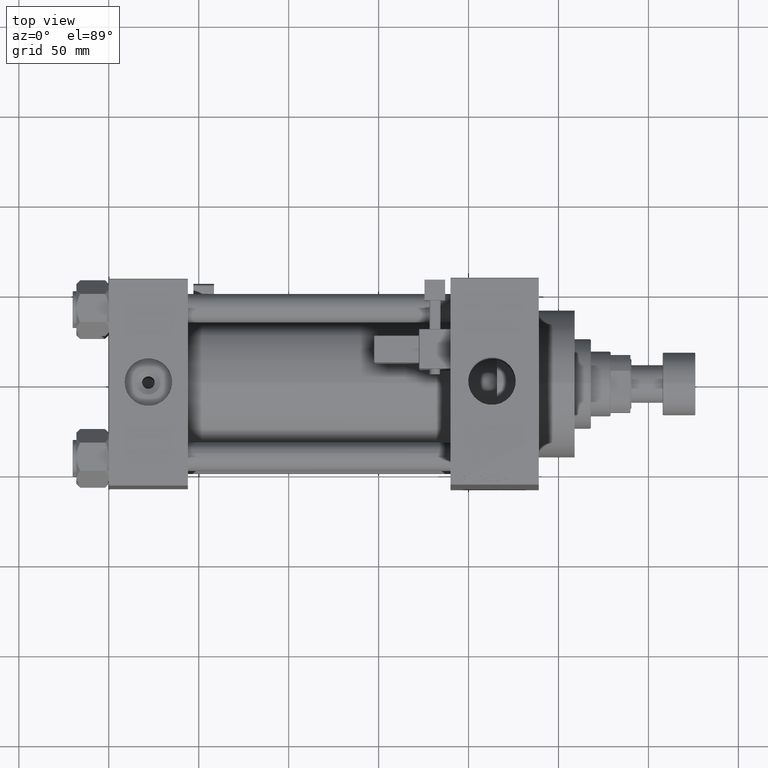
[diagram: clean part render]
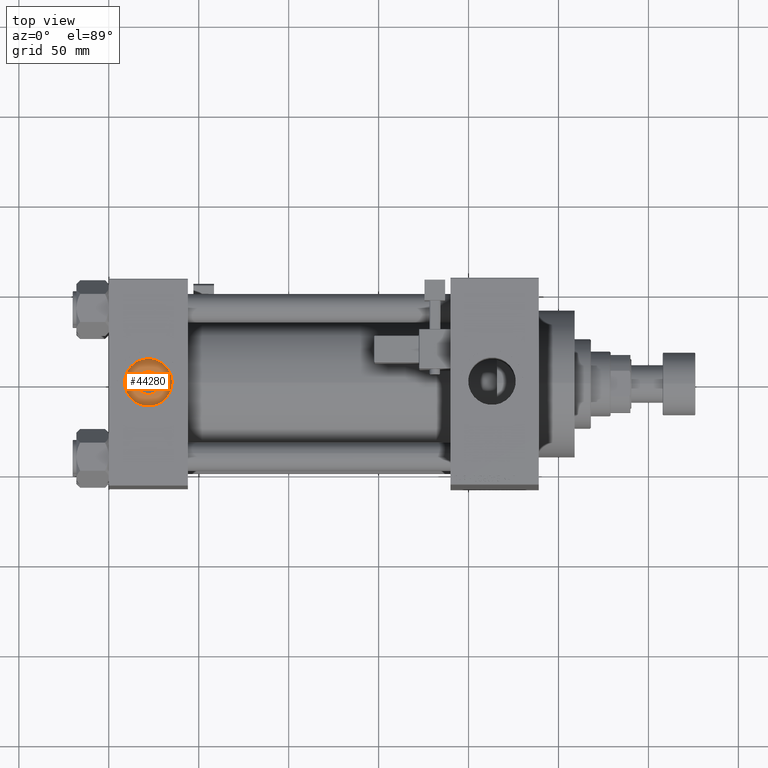
[diagram: same view with one face highlighted and labeled with its STEP entity id]
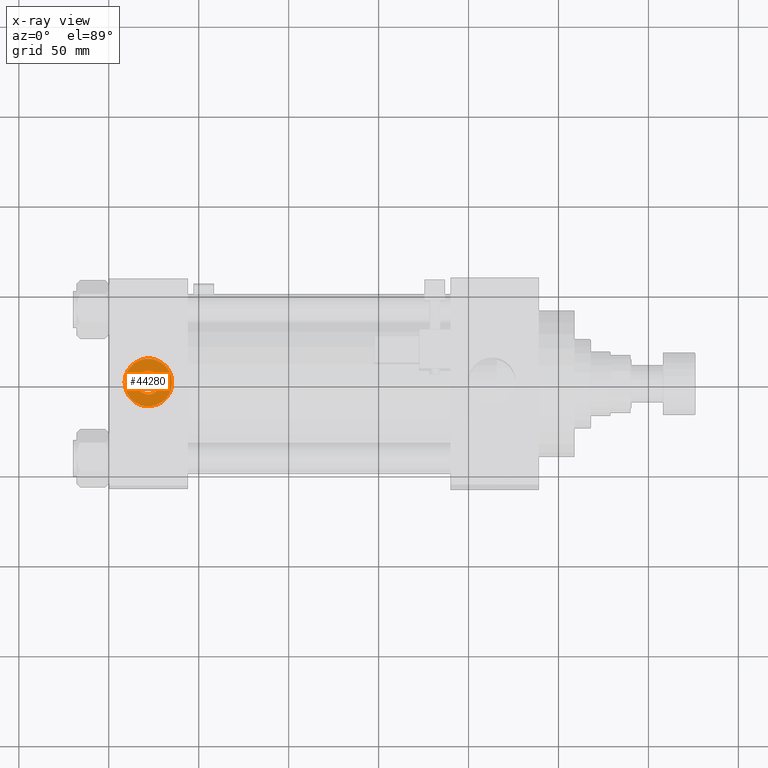
[diagram: x-ray of the same camera — body ghosted, the highlighted face saturated]
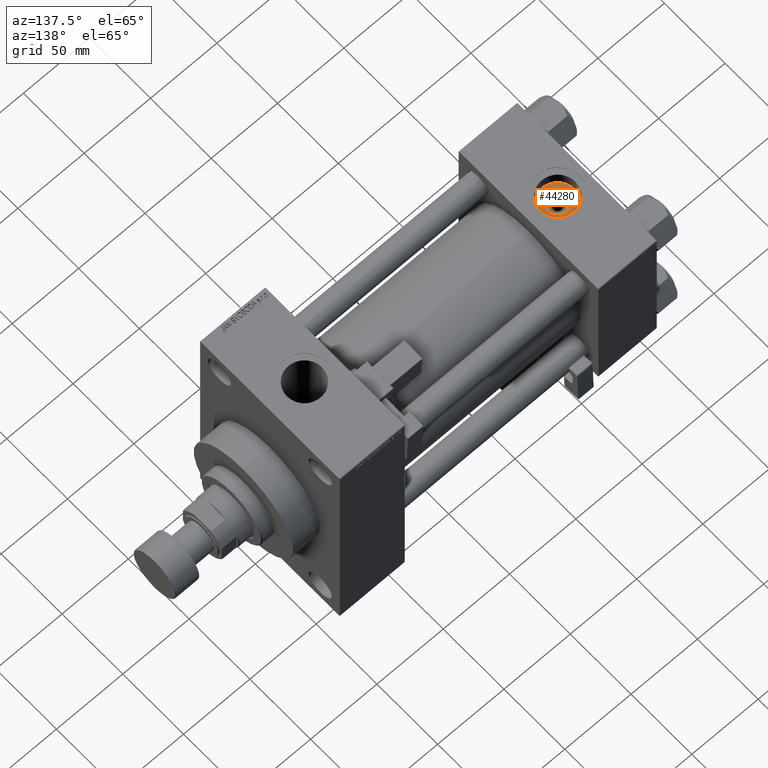
[diagram: same view with one face highlighted and labeled with its STEP entity id]
A machine part, top view. The second image highlights one B-rep face of the part: STEP entity #44280.
The next image is the same camera in x-ray: the body ghosted, the highlighted face saturated — about 0% of this face is hidden behind the body in this view.
A second angle (auxiliary view) of the same face is appended — the face is thin or edge-on in the first view.
In plain terms, the highlighted planar face has unit normal (0, 0, 1).
Its self-contained STEP definition (entity closure, byte-faithful):
#1987 = CIRCLE ( 'NONE', #10092, 6.640000000000090274 ) ;
#3441 = EDGE_CURVE ( 'NONE', #27596, #50212, #39282, .T. ) ;
#3694 = DIRECTION ( 'NONE',  ( 0.000000000000000000, 0.000000000000000000, 1.000000000000000000 ) ) ;
#8852 = EDGE_CURVE ( 'NONE', #12569, #23355, #1987, .T. ) ;
#10092 = AXIS2_PLACEMENT_3D ( 'NONE', #11655, #43215, #31742 ) ;
#11655 = CARTESIAN_POINT ( 'NONE',  ( 22.00000000000000000, -8.673617379884035472E-15, 46.70000000000000284 ) ) ;
#12569 = VERTEX_POINT ( 'NONE', #46102 ) ;
#15194 = CARTESIAN_POINT ( 'NONE',  ( 8.779999999999994031, -7.054634311411234321E-15, 46.70000000000000284 ) ) ;
#15745 = DIRECTION ( 'NONE',  ( 0.000000000000000000, 0.000000000000000000, 1.000000000000000000 ) ) ;
#17225 = CARTESIAN_POINT ( 'NONE',  ( 15.35999999999990884, -7.860451905250181530E-15, 46.70000000000000284 ) ) ;
#17912 = AXIS2_PLACEMENT_3D ( 'NONE', #38572, #3694, #19971 ) ;
#18974 = FACE_OUTER_BOUND ( 'NONE', #36184, .T. ) ;
#19672 = CIRCLE ( 'NONE', #37534, 13.22000000000000242 ) ;
#19813 = CARTESIAN_POINT ( 'NONE',  ( 35.21999999999999886, -8.673617379884035472E-15, 46.70000000000000284 ) ) ;
#19878 = EDGE_CURVE ( 'NONE', #23355, #12569, #45343, .T. ) ;
#19971 = DIRECTION ( 'NONE',  ( 1.000000000000000000, 0.000000000000000000, -0.000000000000000000 ) ) ;
#23320 = ORIENTED_EDGE ( 'NONE', *, *, #8852, .T. ) ;
#23355 = VERTEX_POINT ( 'NONE', #17225 ) ;
#23796 = FACE_BOUND ( 'NONE', #26776, .T. ) ;
#26285 = AXIS2_PLACEMENT_3D ( 'NONE', #42989, #15745, #35844 ) ;
#26776 = EDGE_LOOP ( 'NONE', ( #23320, #27887 ) ) ;
#27177 = CARTESIAN_POINT ( 'NONE',  ( 22.00000000000000000, -8.673617379884035472E-15, 46.70000000000000284 ) ) ;
#27298 = DIRECTION ( 'NONE',  ( 1.000000000000000000, 0.000000000000000000, 0.000000000000000000 ) ) ;
#27596 = VERTEX_POINT ( 'NONE', #15194 ) ;
#27887 = ORIENTED_EDGE ( 'NONE', *, *, #19878, .T. ) ;
#31229 = DIRECTION ( 'NONE',  ( -0.000000000000000000, -0.000000000000000000, -1.000000000000000000 ) ) ;
#31742 = DIRECTION ( 'NONE',  ( 1.000000000000000000, 0.000000000000000000, 0.000000000000000000 ) ) ;
#33765 = ORIENTED_EDGE ( 'NONE', *, *, #47011, .T. ) ;
#34775 = AXIS2_PLACEMENT_3D ( 'NONE', #27177, #31229, #50080 ) ;
#35501 = ORIENTED_EDGE ( 'NONE', *, *, #3441, .T. ) ;
#35844 = DIRECTION ( 'NONE',  ( 1.000000000000000000, 0.000000000000000000, 0.000000000000000000 ) ) ;
#36184 = EDGE_LOOP ( 'NONE', ( #33765, #35501 ) ) ;
#37534 = AXIS2_PLACEMENT_3D ( 'NONE', #43074, #47376, #27298 ) ;
#38572 = CARTESIAN_POINT ( 'NONE',  ( 22.00000000000000000, -8.673617379884035472E-15, 46.70000000000000284 ) ) ;
#39282 = CIRCLE ( 'NONE', #26285, 13.22000000000000242 ) ;
#42989 = CARTESIAN_POINT ( 'NONE',  ( 22.00000000000000000, -8.673617379884035472E-15, 46.70000000000000284 ) ) ;
#43074 = CARTESIAN_POINT ( 'NONE',  ( 22.00000000000000000, -8.673617379884035472E-15, 46.70000000000000284 ) ) ;
#43215 = DIRECTION ( 'NONE',  ( -0.000000000000000000, -0.000000000000000000, -1.000000000000000000 ) ) ;
#44280 = ADVANCED_FACE ( 'NONE', ( #23796, #18974 ), #46721, .T. ) ;
#45343 = CIRCLE ( 'NONE', #34775, 6.640000000000090274 ) ;
#46102 = CARTESIAN_POINT ( 'NONE',  ( 28.64000000000008939, -8.673617379884035472E-15, 46.70000000000000284 ) ) ;
#46721 = PLANE ( 'NONE',  #17912 ) ;
#47011 = EDGE_CURVE ( 'NONE', #50212, #27596, #19672, .T. ) ;
#47376 = DIRECTION ( 'NONE',  ( 0.000000000000000000, 0.000000000000000000, 1.000000000000000000 ) ) ;
#50080 = DIRECTION ( 'NONE',  ( 1.000000000000000000, 0.000000000000000000, 0.000000000000000000 ) ) ;
#50212 = VERTEX_POINT ( 'NONE', #19813 ) ;